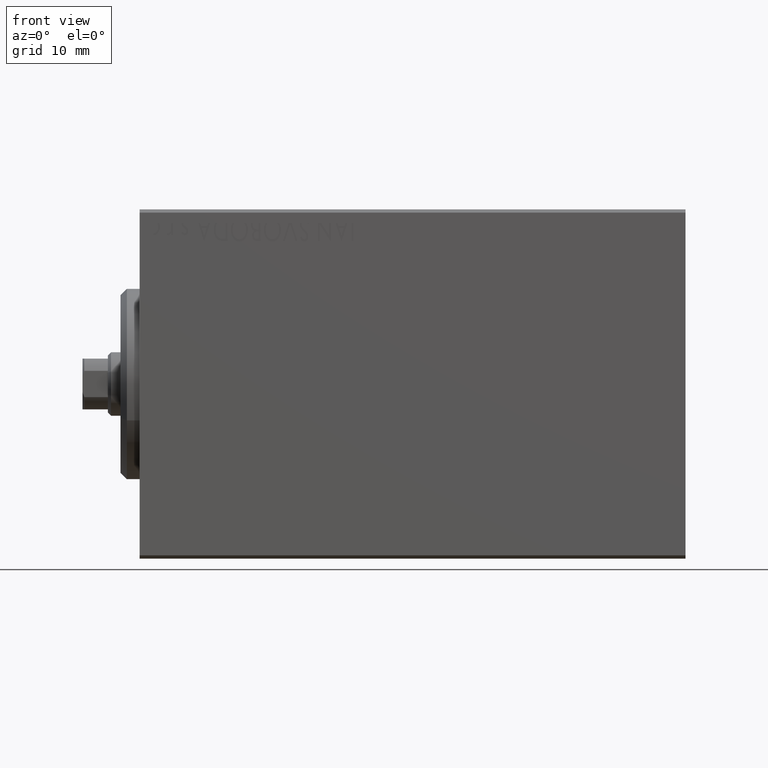
[diagram: clean part render]
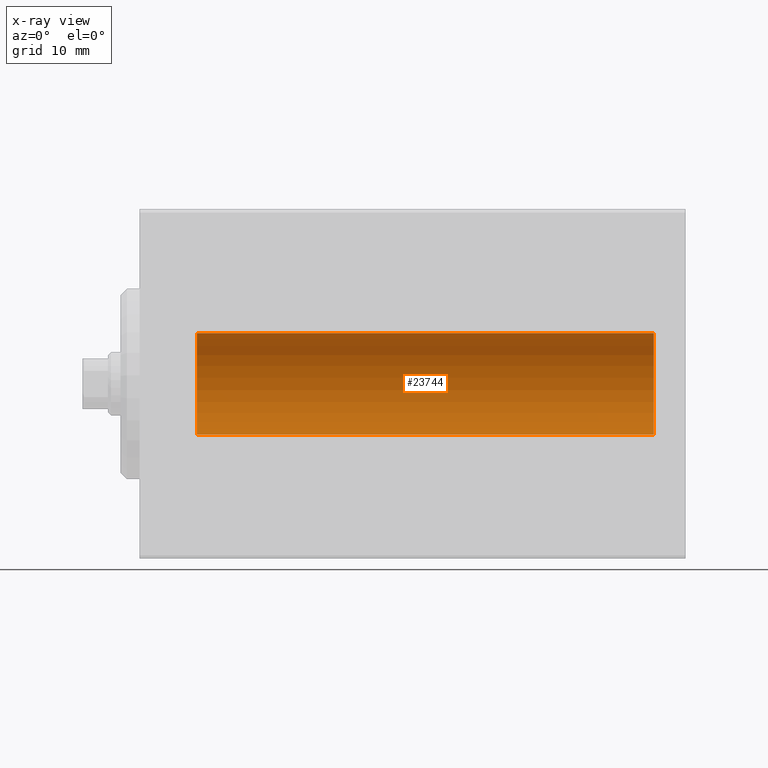
[diagram: x-ray — body ghosted, one internal face saturated and labeled with its STEP entity id]
A machine part, front view, then the same camera in x-ray: the body is ghosted and one INTERNAL B-rep face — a face not visible from any outside direction — is saturated and labeled: STEP entity #23744.
In plain terms, the highlighted cylindrical surface (partial cylindrical patch) has radius 8 mm, axis along (-1, -0, -0).
Its self-contained STEP definition (entity closure, byte-faithful):
#737 = EDGE_CURVE ( 'NONE', #42722, #36695, #18454, .T. ) ;
#858 = DIRECTION ( 'NONE',  ( -1.000000000000000000, 0.000000000000000000, 0.000000000000000000 ) ) ;
#1307 = ORIENTED_EDGE ( 'NONE', *, *, #17398, .F. ) ;
#2017 = LINE ( 'NONE', #35464, #8834 ) ;
#3552 = ORIENTED_EDGE ( 'NONE', *, *, #737, .T. ) ;
#3626 = FACE_OUTER_BOUND ( 'NONE', #11527, .T. ) ;
#5718 = DIRECTION ( 'NONE',  ( -1.000000000000000000, 0.000000000000000000, 0.000000000000000000 ) ) ;
#8834 = VECTOR ( 'NONE', #25934, 1000.000000000000000 ) ;
#9555 = EDGE_CURVE ( 'NONE', #14345, #42722, #9931, .T. ) ;
#9931 = LINE ( 'NONE', #37162, #37797 ) ;
#11527 = EDGE_LOOP ( 'NONE', ( #22376, #1307, #31640, #3552 ) ) ;
#12046 = CARTESIAN_POINT ( 'NONE',  ( 8.999999999999994671, 0.000000000000000000, 7.999999999999998224 ) ) ;
#12383 = DIRECTION ( 'NONE',  ( 0.000000000000000000, 0.000000000000000000, 1.000000000000000000 ) ) ;
#12439 = AXIS2_PLACEMENT_3D ( 'NONE', #26103, #5718, #12383 ) ;
#14052 = CARTESIAN_POINT ( 'NONE',  ( 81.00000000000000000, 0.000000000000000000, 0.000000000000000000 ) ) ;
#14345 = VERTEX_POINT ( 'NONE', #29030 ) ;
#14381 = EDGE_CURVE ( 'NONE', #17311, #36695, #2017, .T. ) ;
#17311 = VERTEX_POINT ( 'NONE', #33171 ) ;
#17398 = EDGE_CURVE ( 'NONE', #14345, #17311, #32902, .T. ) ;
#18454 = CIRCLE ( 'NONE', #43214, 7.999999999999998224 ) ;
#22376 = ORIENTED_EDGE ( 'NONE', *, *, #14381, .F. ) ;
#23744 = ADVANCED_FACE ( 'NONE', ( #3626 ), #37311, .F. ) ;
#24222 = DIRECTION ( 'NONE',  ( -1.000000000000000000, -0.000000000000000000, -0.000000000000000000 ) ) ;
#25934 = DIRECTION ( 'NONE',  ( -1.000000000000000000, -0.000000000000000000, -0.000000000000000000 ) ) ;
#26103 = CARTESIAN_POINT ( 'NONE',  ( 81.00000000000000000, 0.000000000000000000, 0.000000000000000000 ) ) ;
#29030 = CARTESIAN_POINT ( 'NONE',  ( 81.00000000000000000, 0.000000000000000000, 7.999999999999998224 ) ) ;
#31185 = CARTESIAN_POINT ( 'NONE',  ( 8.999999999999994671, 0.000000000000000000, 0.000000000000000000 ) ) ;
#31640 = ORIENTED_EDGE ( 'NONE', *, *, #9555, .T. ) ;
#32902 = CIRCLE ( 'NONE', #12439, 7.999999999999998224 ) ;
#33171 = CARTESIAN_POINT ( 'NONE',  ( 81.00000000000000000, 9.797174393178823685E-16, -7.999999999999998224 ) ) ;
#33819 = DIRECTION ( 'NONE',  ( -1.000000000000000000, -0.000000000000000000, -0.000000000000000000 ) ) ;
#33967 = DIRECTION ( 'NONE',  ( 0.000000000000000000, 0.000000000000000000, 1.000000000000000000 ) ) ;
#34491 = AXIS2_PLACEMENT_3D ( 'NONE', #14052, #24222, #33967 ) ;
#35464 = CARTESIAN_POINT ( 'NONE',  ( 81.00000000000000000, 9.797174393178823685E-16, -7.999999999999998224 ) ) ;
#36695 = VERTEX_POINT ( 'NONE', #38977 ) ;
#37162 = CARTESIAN_POINT ( 'NONE',  ( 81.00000000000000000, 0.000000000000000000, 7.999999999999998224 ) ) ;
#37311 = CYLINDRICAL_SURFACE ( 'NONE', #34491, 7.999999999999998224 ) ;
#37797 = VECTOR ( 'NONE', #33819, 1000.000000000000000 ) ;
#38977 = CARTESIAN_POINT ( 'NONE',  ( 8.999999999999994671, 9.797174393178823685E-16, -7.999999999999998224 ) ) ;
#42722 = VERTEX_POINT ( 'NONE', #12046 ) ;
#43214 = AXIS2_PLACEMENT_3D ( 'NONE', #31185, #858, #43850 ) ;
#43850 = DIRECTION ( 'NONE',  ( 0.000000000000000000, 0.000000000000000000, 1.000000000000000000 ) ) ;